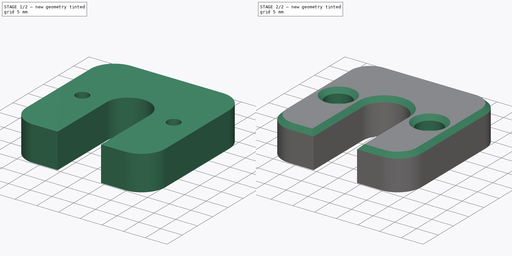
[diagram: build sequence overview — one tinted view per stage of 2, left to right]
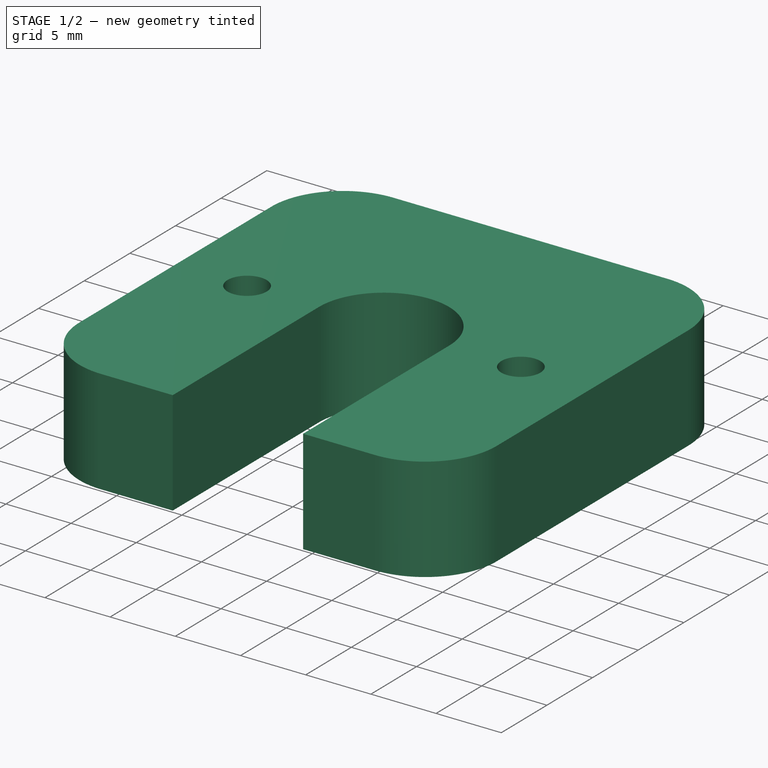
[diagram: stage 1 of 2 — iso view after this stage's code; geometry added in this stage tinted green]
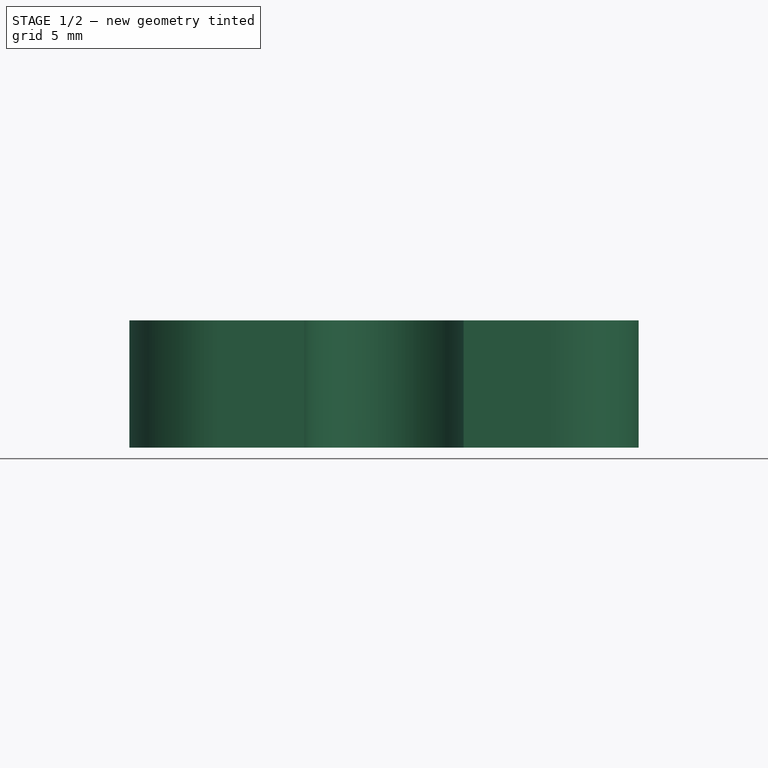
[diagram: stage 1 of 2 — front view after this stage's code; geometry added in this stage tinted green]
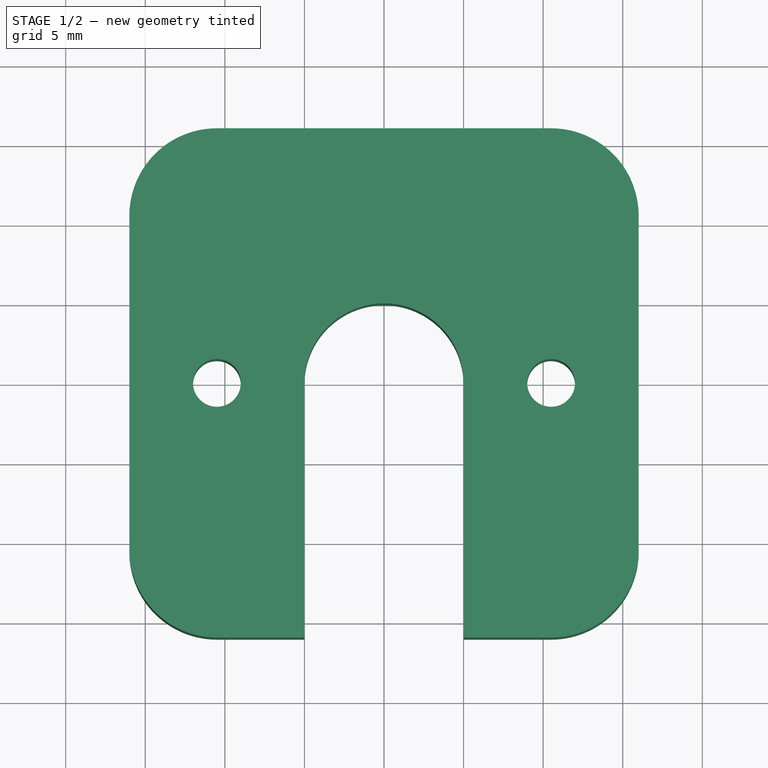
[diagram: stage 1 of 2 — top view after this stage's code; geometry added in this stage tinted green]
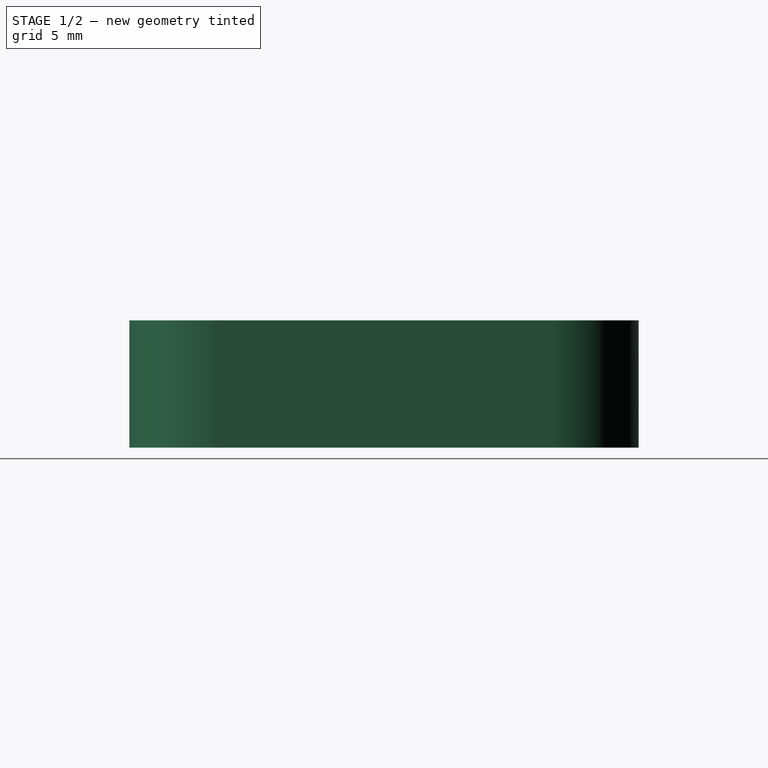
[diagram: stage 1 of 2 — right view after this stage's code; geometry added in this stage tinted green]
FCSTD DOCUMENT  (FreeCAD 0.19R24276 (Git))
Label: plotter-beauty-cover
License: All rights reserved
LicenseURL: http://en.wikipedia.org/wiki/All_rights_reserved
objects: Sketcher::SketchObject×3, PartDesign::Pocket×2, Spreadsheet::Sheet×1, PartDesign::Pad×1, PartDesign::Chamfer×1, PartDesign::Body×1, App::Part×1
note: 12 computed .brp shape members not serialized (recipe doc carries the construction recipe); baked Part::Feature solids carry a one-line shape summary decoded from their .brp

FEATURE [Spreadsheet::Sheet] Spreadsheet  label="Specs"
  cells = A5=Core length; B5(core_length)=74; A6=Core heigth; B6(core_height)=22; A7=Core inner length; B7(core_inner_length)=36; A9=Belt hole heigth; B9(belt_hole_height)=9.199999999999999; A10=Belt hole width; B10(belt_hole_width)=16; A12=LM8UU Diameter; B12(lm8uu_d)=15.1; A13=Rod Diameter; B13(rod_d)=8.4; A14=LM8UU Legth; B14(lm8uu_l)=24; A16=nema_l; B16(nema_l)=42; A17=nema_hole_d; B17(nema_hole_d)=3; A18=nema_hole_pos; B18(nema_hole_pos)==31 / 2
FEATURE [Sketcher::SketchObject] Sketch
  FullyConstrained = true
  MapMode = 5
  Support = -> [XY_Plane011]
  sketch-geometry (11):
    g0: LineSegment StartX=-10.5 StartY=16 StartZ=0 EndX=10.5 EndY=16 EndZ=0
    g1: LineSegment StartX=16 StartY=10.5 StartZ=0 EndX=16 EndY=-10.5 EndZ=0
    g2: LineSegment StartX=10.5 StartY=-16 StartZ=0 EndX=-10.5 EndY=-16 EndZ=0
    g3: LineSegment StartX=-16 StartY=-10.5 StartZ=0 EndX=-16 EndY=10.5 EndZ=0
    g4: ArcOfCircle CenterX=-10.5 CenterY=10.5 CenterZ=0 NormalX=0 NormalY=0 NormalZ=1 AngleXU=0 Radius=5.5 StartAngle=1.5708 EndAngle=3.14159
    g5: ArcOfCircle CenterX=10.5 CenterY=10.5 CenterZ=0 NormalX=0 NormalY=0 NormalZ=1 AngleXU=0 Radius=5.5 StartAngle=0 EndAngle=1.5708
    g6: ArcOfCircle CenterX=10.5 CenterY=-10.5 CenterZ=0 NormalX=0 NormalY=0 NormalZ=1 AngleXU=0 Radius=5.5 StartAngle=4.71239 EndAngle=6.28319
    g7: ArcOfCircle CenterX=-10.5 CenterY=-10.5 CenterZ=0 NormalX=0 NormalY=0 NormalZ=1 AngleXU=0 Radius=5.5 StartAngle=3.14159 EndAngle=4.71239
    g8: Circle CenterX=0 CenterY=0 CenterZ=0 NormalX=0 NormalY=0 NormalZ=1 AngleXU=0 Radius=5
    g9: Circle CenterX=-10.5 CenterY=0 CenterZ=0 NormalX=0 NormalY=0 NormalZ=1 AngleXU=0 Radius=1.5
    g10: Circle CenterX=10.5 CenterY=0 CenterZ=0 NormalX=0 NormalY=0 NormalZ=1 AngleXU=0 Radius=1.5
  constraints (25):
    c: Horizontal(g0)
    c: Horizontal(g2)
    c: Vertical(g1)
    c: Vertical(g3)
    c: Tangent(g0,g4) = 1.5708
    c: Tangent(g3,g4) = 1.5708
    c: Tangent(g0,g5) = 1.5708
    c: Tangent(g1,g5) = 1.5708
    c: Tangent(g1,g6) = 1.5708
    c: Tangent(g2,g6) = 1.5708
    c: Tangent(g2,g7) = 1.5708
    c: Tangent(g3,g7) = 1.5708
    c: Symmetric(g4,g6,g-1)
    c: Symmetric(g5,g7,g-1)
    c: DistanceY(g2,g0) = 32
    c: Coincident(g8,g-1)
    c: Diameter(g8) = 10
    c: PointOnObject(g9,g-1)
    c: Symmetric(g9,g10,g8)
    c: DistanceX(g3,g1) = 32
    c: DistanceX(g9,g10) = 21
    c: Diameter(g9) = 3
    c: Equal(g9,g10)
    c: Equal(g5,g4)
    c: Vertical(g0,g9)
FEATURE [PartDesign::Pad] Pad
  Direction = (1,1,1)
  Length = 8
  Length2 = 100
  Profile = -> Sketch
  Type = 0
FEATURE [Sketcher::SketchObject] Sketch029
  ExternalGeometry = -> [Pad]
  FullyConstrained = true
  MapMode = 5
  Placement = pos=(0,0,8) rot=(0,0,1;0rad)
  Support = -> [Pad]
  sketch-geometry (4):
    g0: LineSegment StartX=-5 StartY=0 StartZ=0 EndX=5 EndY=0 EndZ=0
    g1: LineSegment StartX=5 StartY=0 StartZ=0 EndX=5 EndY=-16 EndZ=0
    g2: LineSegment StartX=5 StartY=-16 StartZ=0 EndX=-5 EndY=-16 EndZ=0
    g3: LineSegment StartX=-5 StartY=-16 StartZ=0 EndX=-5 EndY=0 EndZ=0
  constraints (11):
    c: Coincident(g0,g1)
    c: Coincident(g1,g2)
    c: Coincident(g2,g3)
    c: Coincident(g3,g0)
    c: Horizontal(g2)
    c: Vertical(g1)
    c: Vertical(g3)
    c: PointOnObject(g0,g-1)
    c: Symmetric(g0,g0,g-2)
    c: DistanceX(g0,g0) = 10
    c: Horizontal(g-3,g1)
FEATURE [PartDesign::Pocket] Pocket
  BaseFeature = -> Pad
  Length = 5
  Length2 = 100
  Profile = -> Sketch029
  Type = 1
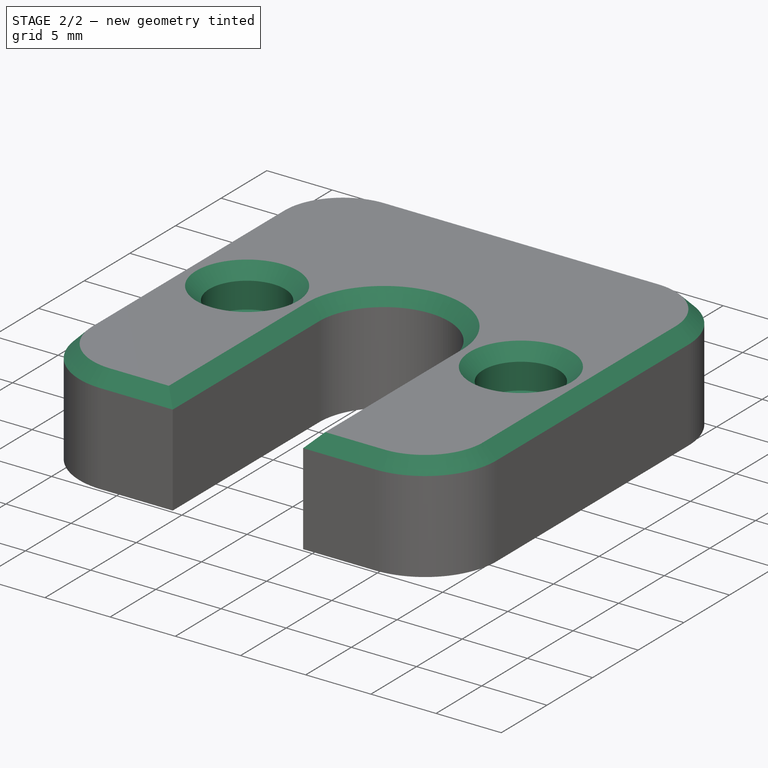
[diagram: stage 2 of 2 — iso view after this stage's code; geometry added in this stage tinted green]
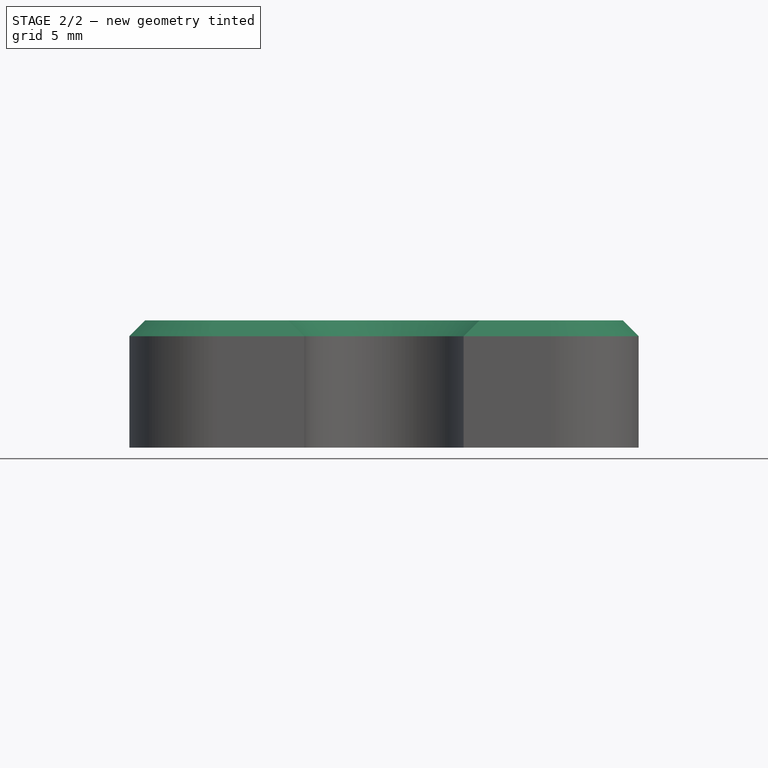
[diagram: stage 2 of 2 — front view after this stage's code; geometry added in this stage tinted green]
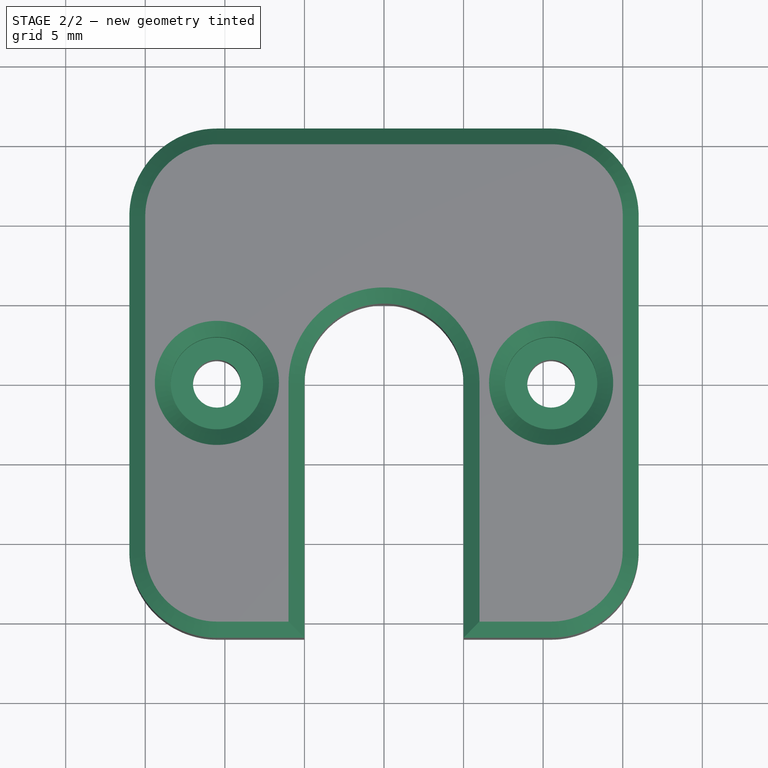
[diagram: stage 2 of 2 — top view after this stage's code; geometry added in this stage tinted green]
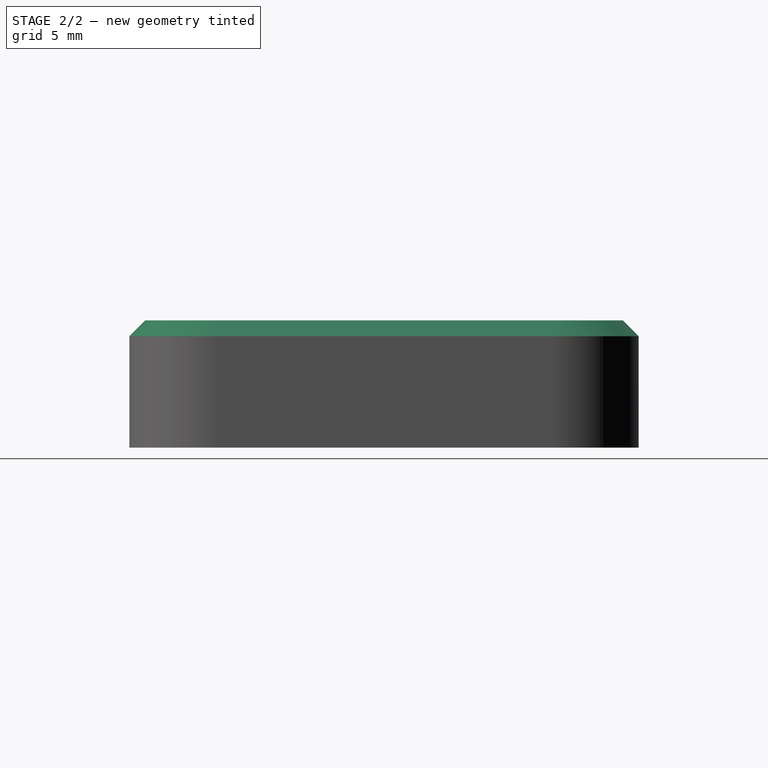
[diagram: stage 2 of 2 — right view after this stage's code; geometry added in this stage tinted green]
FEATURE [Sketcher::SketchObject] Sketch030
  FullyConstrained = true
  MapMode = 5
  Placement = pos=(0,0,8) rot=(0,0,1;0rad)
  Support = -> [Pocket]
  sketch-geometry (2):
    g0: Circle CenterX=-10.5 CenterY=0 CenterZ=0 NormalX=0 NormalY=0 NormalZ=1 AngleXU=0 Radius=2.9
    g1: Circle CenterX=10.5 CenterY=0 CenterZ=0 NormalX=0 NormalY=0 NormalZ=1 AngleXU=0 Radius=2.9
  constraints (5):
    c: PointOnObject(g0,g-1)
    c: Symmetric(g0,g1,g-1)
    c: Diameter(g0) = 5.8
    c: Equal(g0,g1)
    c: DistanceX(g0,g1) = 21
FEATURE [PartDesign::Pocket] Pocket016
  BaseFeature = -> Pocket
  Length = 3
  Length2 = 100
  Profile = -> Sketch030
  Type = 0
FEATURE [PartDesign::Chamfer] Chamfer
  Angle = 45
  Base = -> Pocket016 [Face5]
  BaseFeature = -> Pocket016
  ChamferType = 0
  FlipDirection = false
  Size = 1
  Size2 = 1
  SupportTransform = false
FEATURE [PartDesign::Body] Body
  Group = -> [Sketch,Pad,Sketch029,Pocket,Sketch030,Pocket016,Chamfer]
  Origin = -> Origin011
  Placement = pos=(0,0,22) rot=(0,0,1;0rad)
  Tip = -> Chamfer
FEATURE [App::Part] Part001  label="BeautyCover"
  Group = -> [Body]
  Origin = -> Origin010
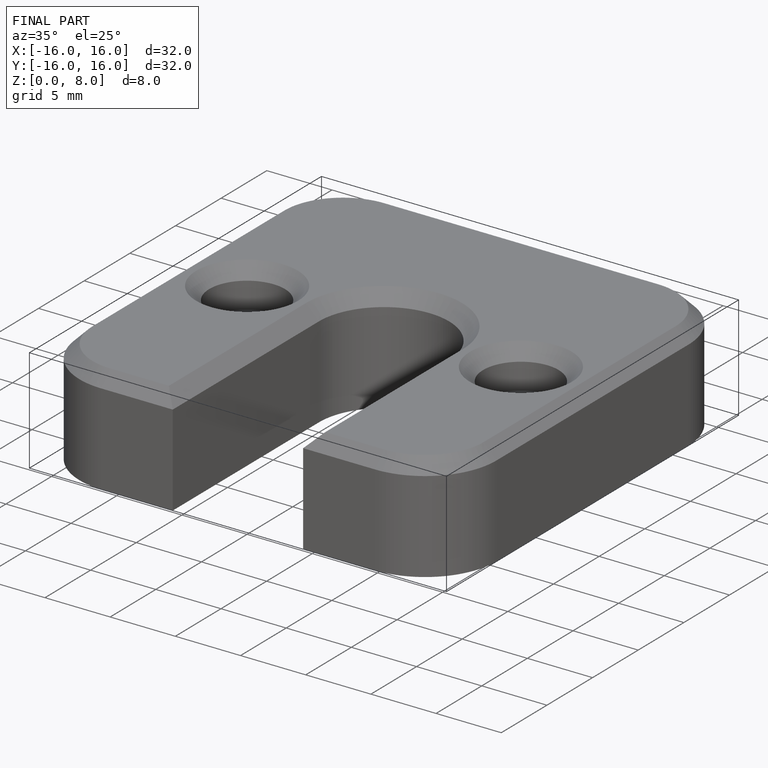
[diagram: finished part — iso view with bounding-box wireframe]
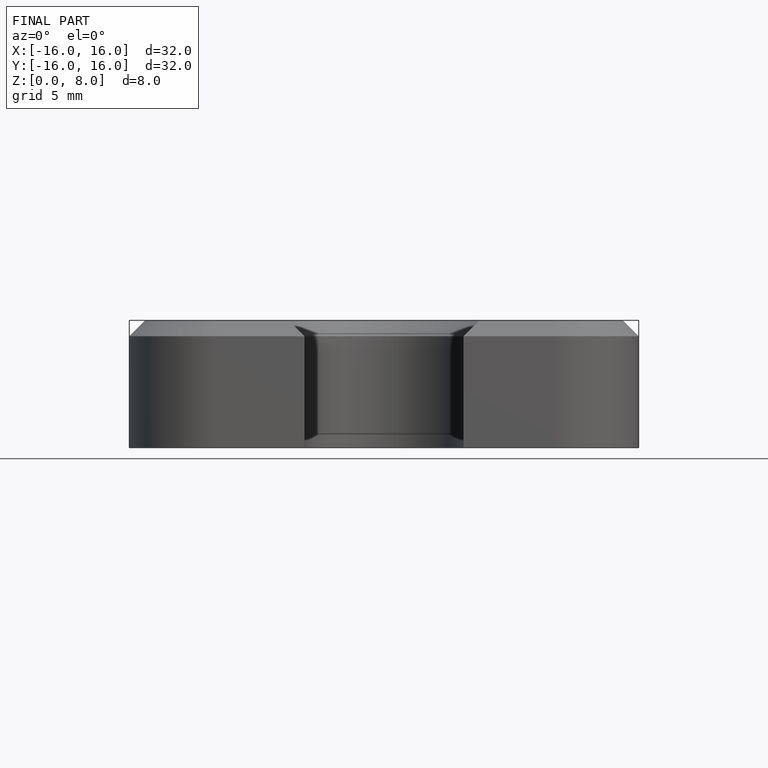
[diagram: finished part — front view with bounding-box wireframe]
